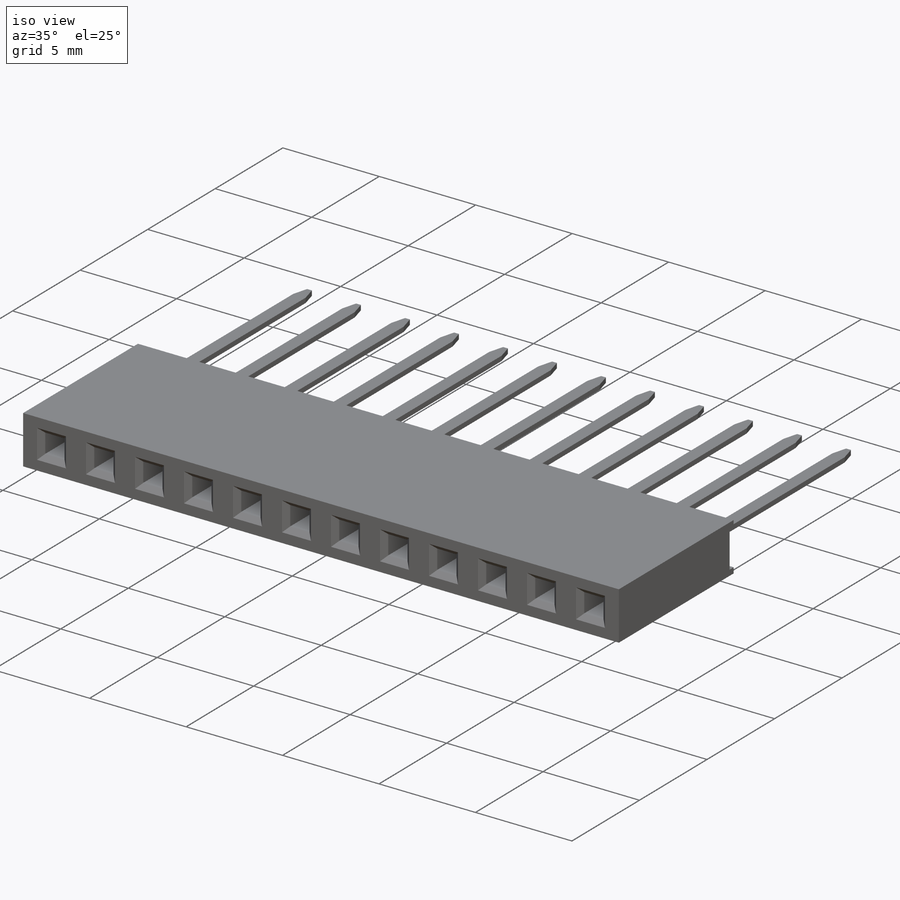
[diagram: iso view]
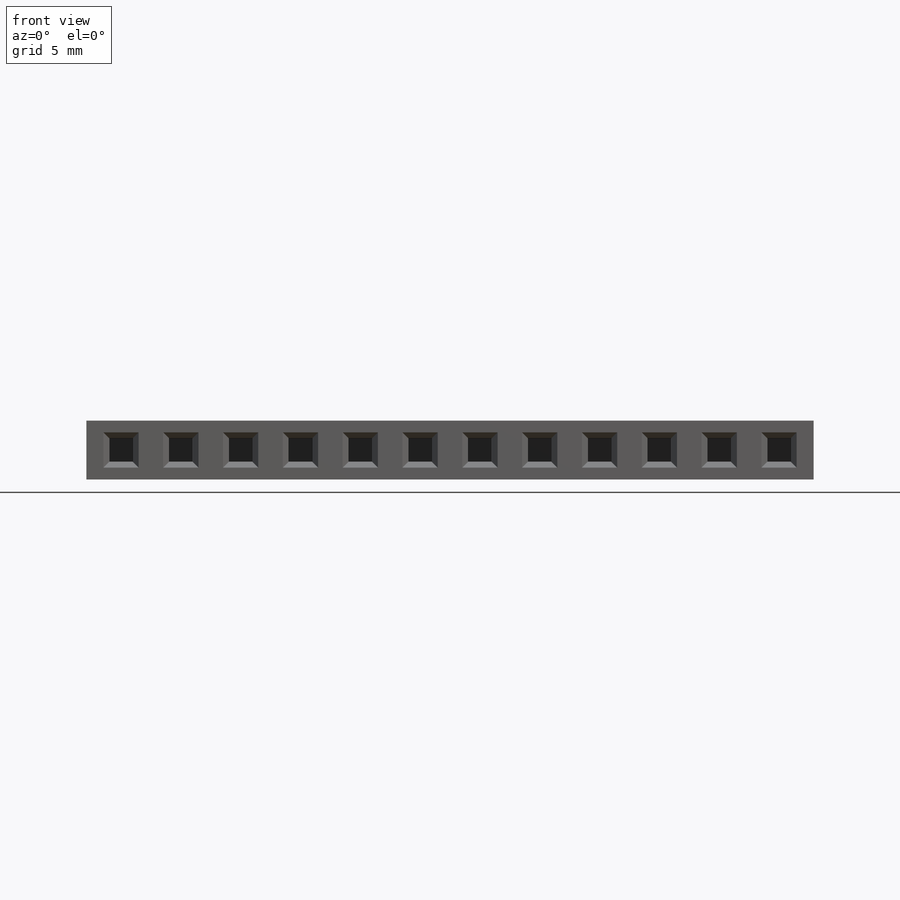
[diagram: front view]
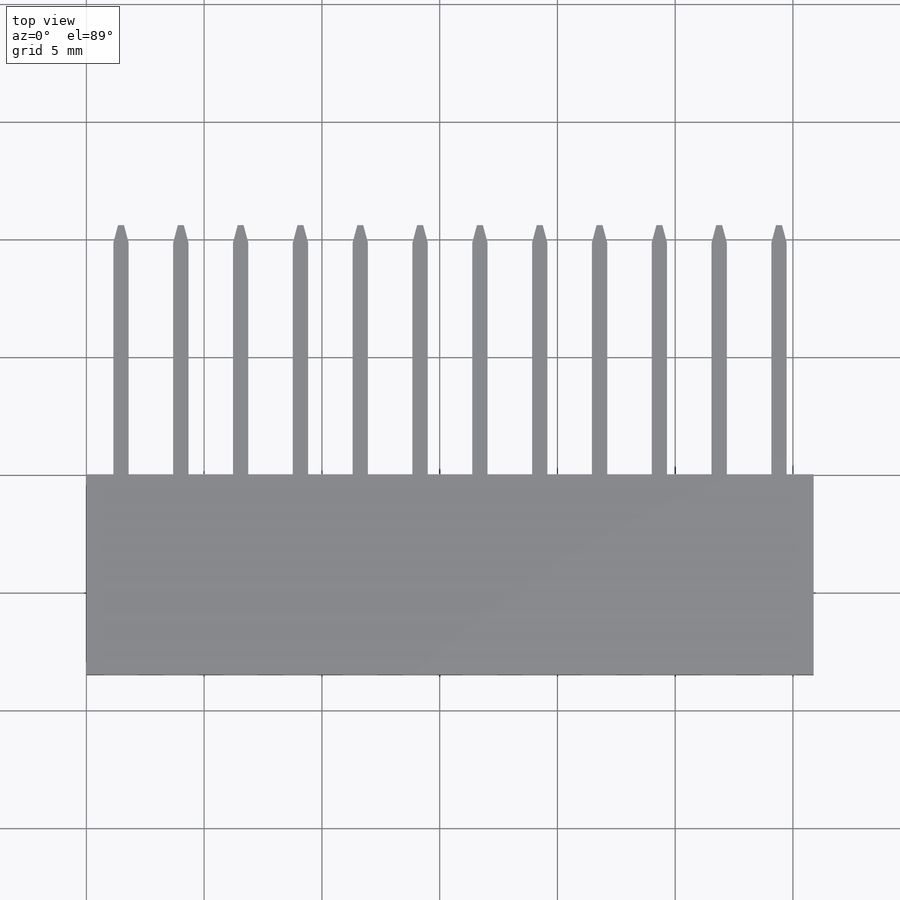
[diagram: top view]
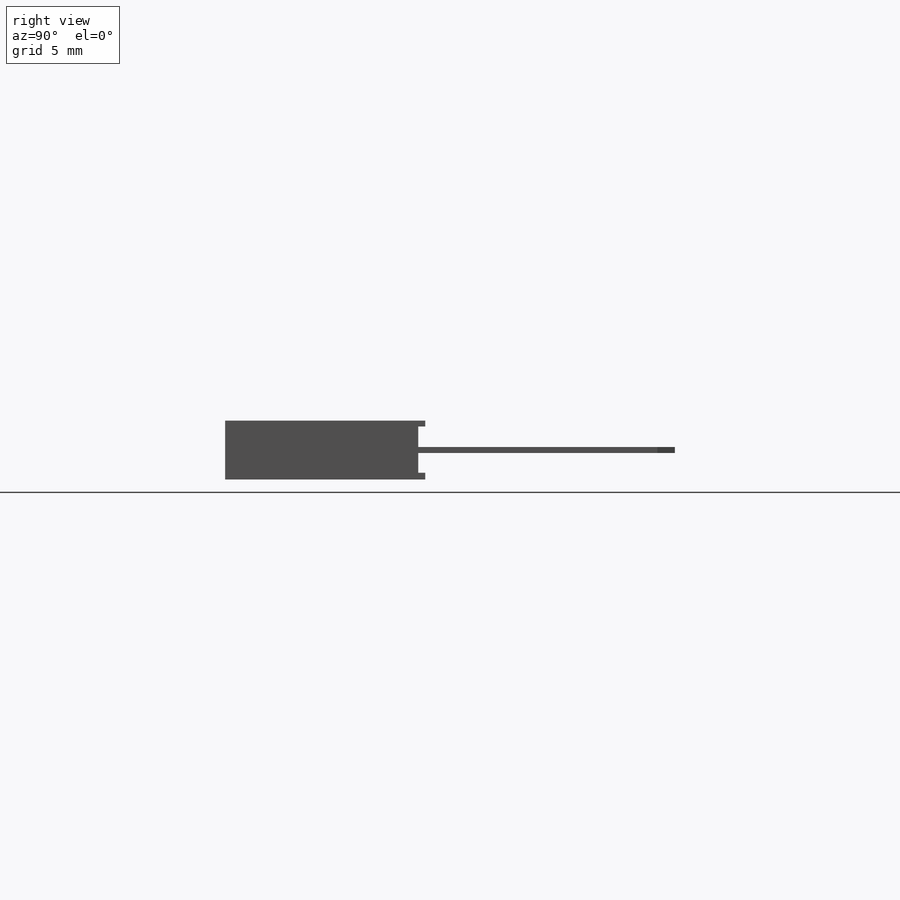
[diagram: right view]
SOLIDWORKS PART (.sldprt)
format: sldprt  version: not decoded by parser v0  size: 351,744 bytes
history: native  units: mm
features: sketch x4, extrude x2, cut_extrude x2, chamfer x2, pattern_linear x2, material x1, plane x1 (+13 scaffold rows collapsed)
feature tree (27):
  scaffold x13  (default folders/planes/origin — collapsed)
  material  "Material <not specified>"
  sketch  "Sketch1"  dims[width=2.5mm length=30.88mm]
  extrude  "Boss-Extrude1"  Depth=8.5mm
  sketch  "Sketch2"  dims[D1=1.25mm D2=1.47mm D3=1.0mm D4=1.0mm]
  cut_extrude  "Cut-Extrude1"  Depth=2.25mm
  chamfer  "Chamfer1"  Distance=0.25mm Angle=45deg
  sketch  "Sketch3"  dims[D1=0.25mm D2=0.3mm]
  cut_extrude  "Cut-Extrude2"  [1 undecoded]
  plane  "Plane1"  Offset=1.25mm
  sketch  "Sketch4"  dims[D1=0.65mm D2=10.6mm]
  extrude  "Boss-Extrude2"  Depth=0.25mm
  chamfer  "Chamfer2"  Distance=0.2mm Angle=75deg
  pattern_linear  "LPattern4"  Count1=12 Count2=1 Spacing1=2.54mm Spacing2=2.54mm
  pattern_linear  "LPattern5"  Count1=12 Count2=1 Spacing1=2.54mm Spacing2=2.54mm
decode coverage: 11 of 12 modeling features carry decoded parameters
note: 1 parameter value undecoded
note: suppression state not decoded; provenance and decode notes live in map.json
